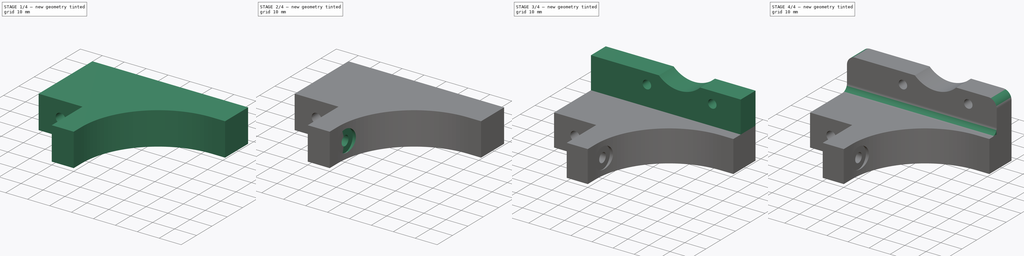
[diagram: build sequence overview — one tinted view per stage of 4, left to right]
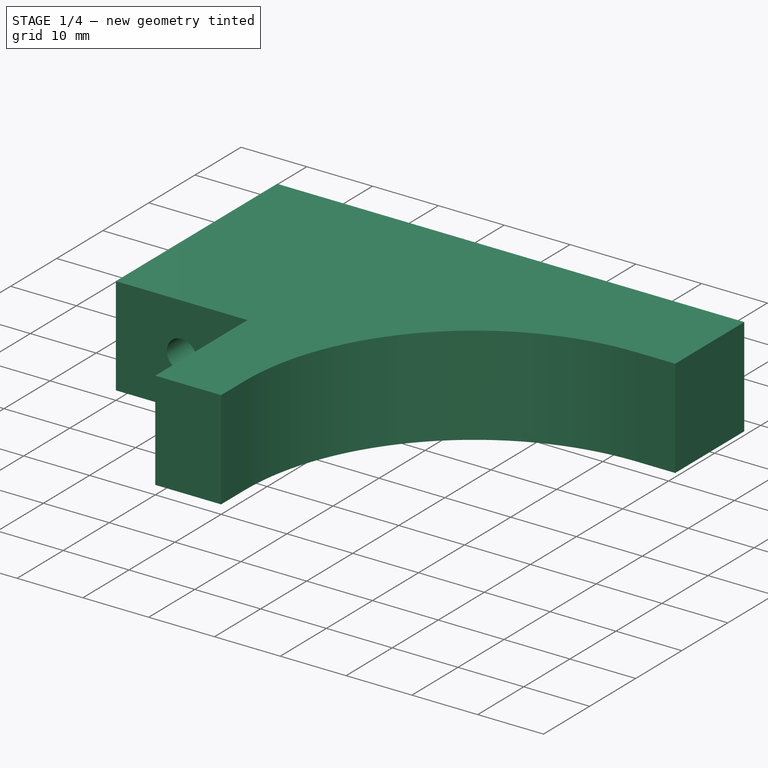
[diagram: stage 1 of 4 — iso view after this stage's code; geometry added in this stage tinted green]
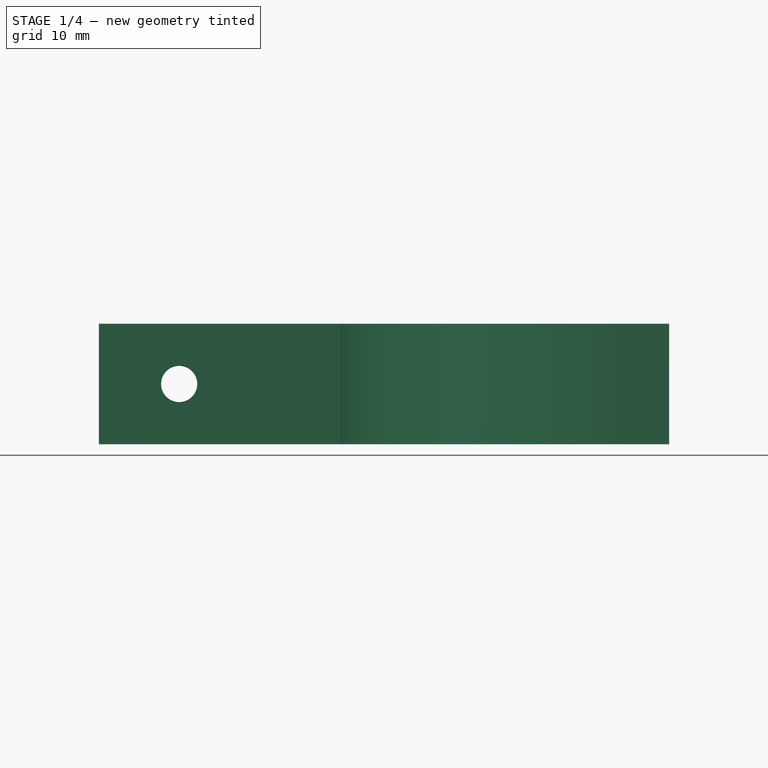
[diagram: stage 1 of 4 — front view after this stage's code; geometry added in this stage tinted green]
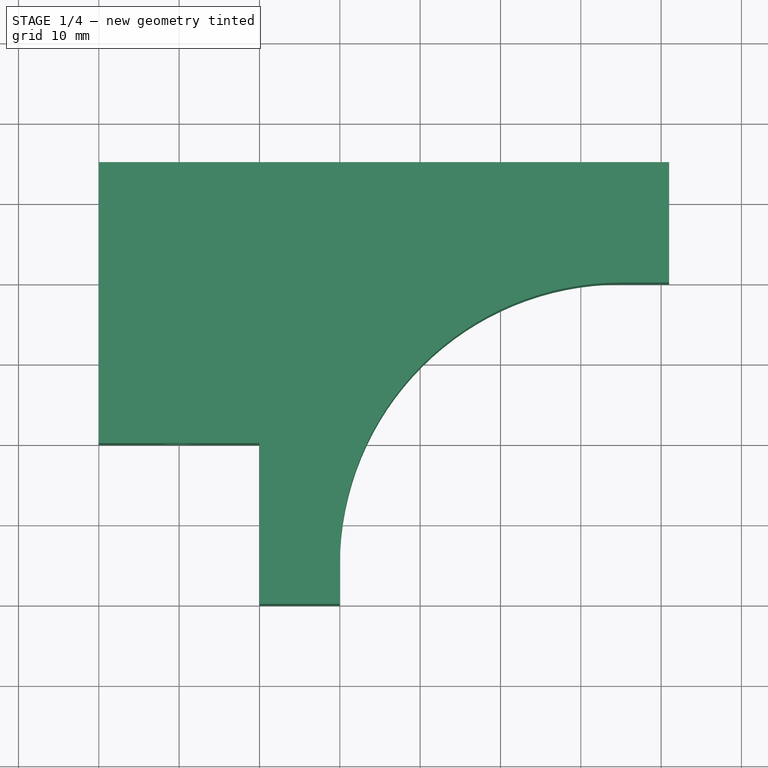
[diagram: stage 1 of 4 — top view after this stage's code; geometry added in this stage tinted green]
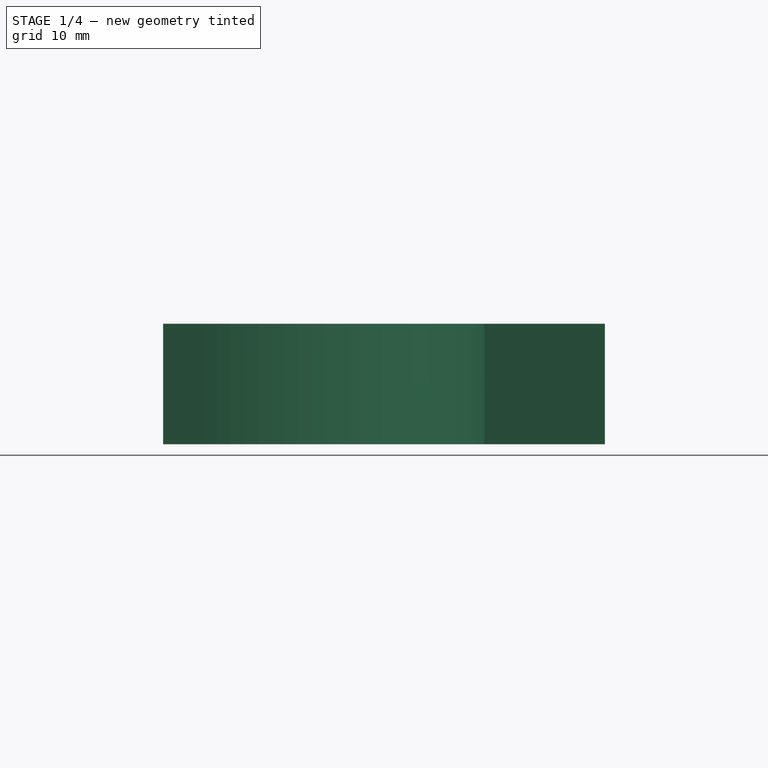
[diagram: stage 1 of 4 — right view after this stage's code; geometry added in this stage tinted green]
FCSTD DOCUMENT
Label: Z-motor-mount
objects: Sketcher::SketchObject×7, PartDesign::Pocket×5, PartDesign::Pad×2, PartDesign::Fillet×2
note: 23 computed .brp shape members not serialized (recipe doc carries the construction recipe); baked Part::Feature solids carry a one-line shape summary decoded from their .brp

FEATURE [Sketcher::SketchObject] Sketch
  sketch-geometry (9):
    g0: LineSegment StartX=51 StartY=15 StartZ=0 EndX=-20 EndY=15 EndZ=0
    g1: LineSegment StartX=-20 StartY=15 StartZ=0 EndX=-20 EndY=-20 EndZ=0
    g2: LineSegment StartX=0 StartY=-40 StartZ=0 EndX=0 EndY=-20 EndZ=0
    g3: LineSegment StartX=0 StartY=-20 StartZ=0 EndX=-20 EndY=-20 EndZ=0
    g4: LineSegment StartX=44.9999 StartY=0 StartZ=0 EndX=51 EndY=0 EndZ=0
    g5: LineSegment StartX=0 StartY=-40 StartZ=0 EndX=10 EndY=-40 EndZ=0
    g6: LineSegment StartX=51 StartY=0 StartZ=0 EndX=51 EndY=15 EndZ=0
    g7: ArcOfCircle CenterX=45 CenterY=-35 CenterZ=0 NormalX=0 NormalY=0 NormalZ=1 Radius=35 StartAngle=1.5708 EndAngle=3.14159
    g8: LineSegment StartX=10 StartY=-40 StartZ=0 EndX=10 EndY=-35 EndZ=0
  constraints (28):
    c: Coincident(g0,g1)
    c: Horizontal(g0)
    c: Vertical(g1)
    c: Distance(g0) = 71
    c: Horizontal(g3)
    c: Vertical(g2)
    c: DistanceX(g2,g1) = -20
    c: Horizontal(g4)
    c: Horizontal(g5)
    c: Coincident(g6,g0)
    c: Vertical(g6)
    c: DistanceX(g5) = 10
    c: Coincident(g5,g2)
    c: Coincident(g4,g6)
    c: Distance(g6) = 15
    c: Coincident(g3,g2)
    c: DistanceY(g-1,g5) = -40
    c: Distance(g2) = 20
    c: PointOnObject(g4,g-1)
    c: Coincident(g3,g1)
    c: Coincident(g7,g4)
    c: Tangent(g7,g4)
    c: Coincident(g8,g5)
    c: Vertical(g8)
    c: Coincident(g8,g7)
    c: Tangent(g8,g7)
    c: Radius(g7) = 35
    c: PointOnObject(g2,g-2)
FEATURE [PartDesign::Pad] Pad
  Length = 15
  Length2 = 100
  Sketch = -> Sketch
  Type = 0
FEATURE [Sketcher::SketchObject] Sketch001
  Placement = pos=(0,-20,0) rot=(1,0,0;1.5708rad)
  Support = -> Pad [Face5]
  sketch-geometry (1):
    g0: Circle CenterX=-10 CenterY=7.5 CenterZ=0 NormalX=0 NormalY=0 NormalZ=1 Radius=2.25
  constraints (3):
    c: DistanceX(g-1,g0) = -10
    c: DistanceY(g-1,g0) = 7.5
    c: Radius(g0) = 2.25
FEATURE [PartDesign::Pocket] Pocket
  Length = 5
  Sketch = -> Sketch001
  Type = 1
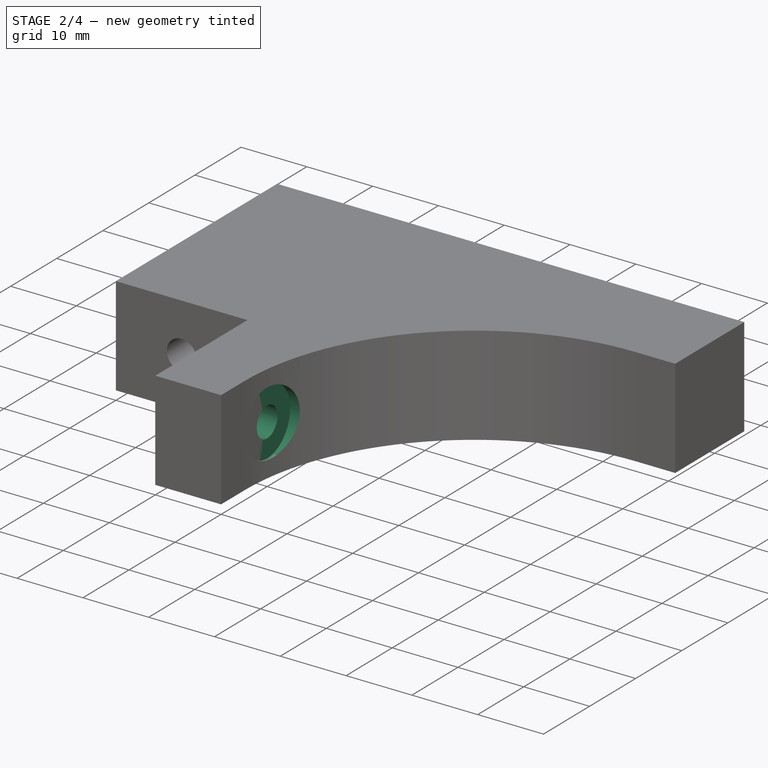
[diagram: stage 2 of 4 — iso view after this stage's code; geometry added in this stage tinted green]
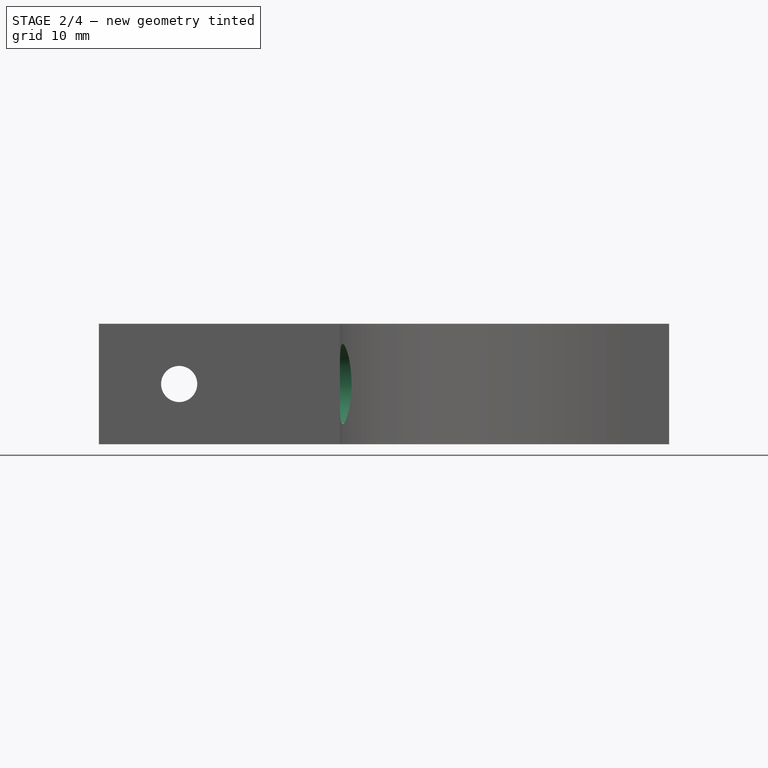
[diagram: stage 2 of 4 — front view after this stage's code; geometry added in this stage tinted green]
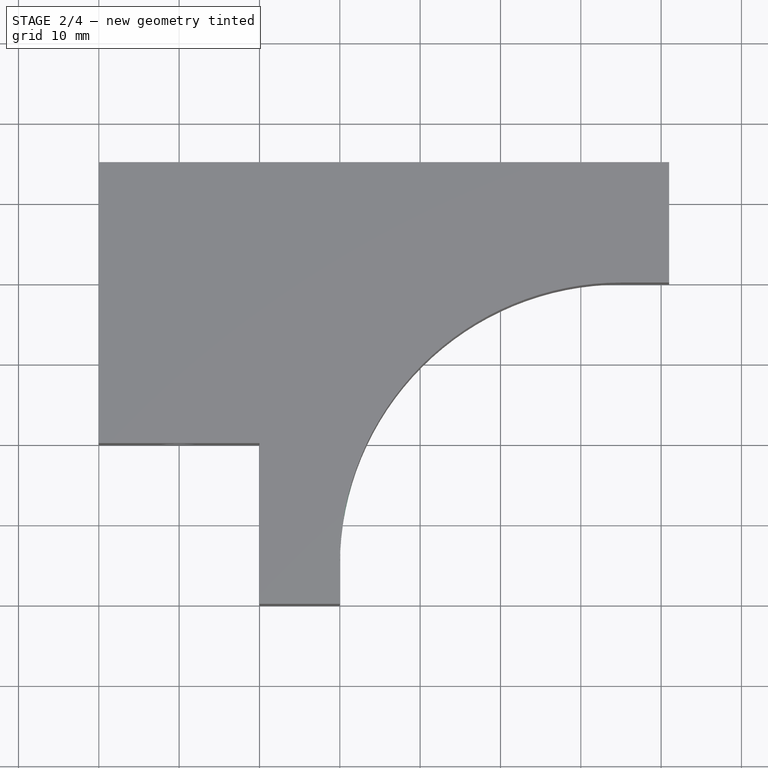
[diagram: stage 2 of 4 — top view after this stage's code; geometry added in this stage tinted green]
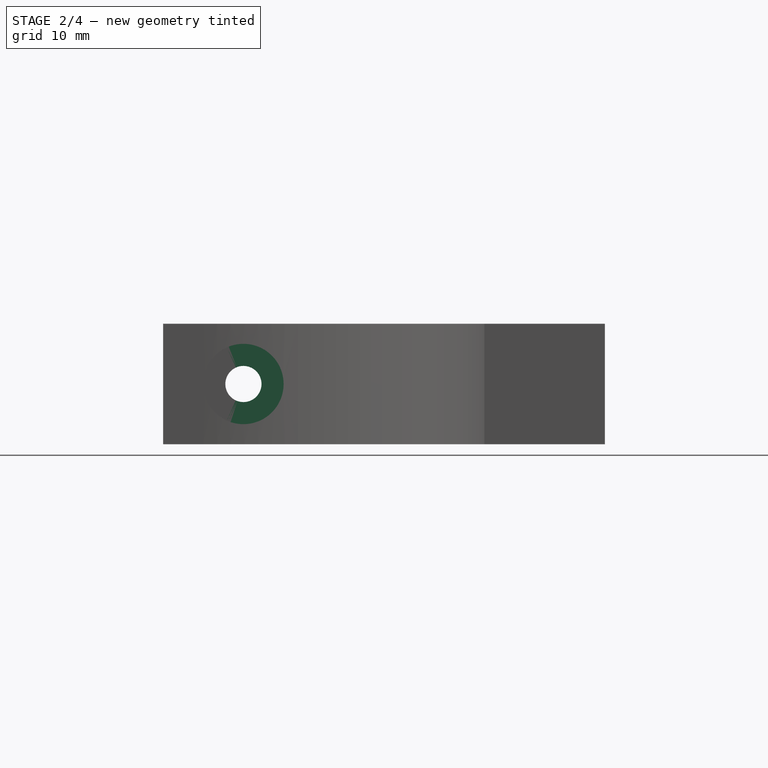
[diagram: stage 2 of 4 — right view after this stage's code; geometry added in this stage tinted green]
FEATURE [Sketcher::SketchObject] Sketch002
  Placement = pos=(0,0,0) rot=(0.57735,-0.57735,-0.57735;2.0944rad)
  Support = -> Pocket [Face10]
  sketch-geometry (1):
    g0: Circle CenterX=30 CenterY=7.5 CenterZ=0 NormalX=0 NormalY=0 NormalZ=1 Radius=2.25
  constraints (3):
    c: Radius(g0) = 2.25
    c: DistanceY(g-1,g0) = 7.5
    c: DistanceX(g-1,g0) = 30
FEATURE [PartDesign::Pocket] Pocket001
  Length = 5
  Sketch = -> Sketch002
  Type = 1
FEATURE [Sketcher::SketchObject] Sketch003
  Placement = pos=(51,0,0) rot=(0.57735,0.57735,0.57735;2.0944rad)
  Support = -> Pocket001 [Face3]
  sketch-geometry (1):
    g0: Circle CenterX=-30 CenterY=7.5 CenterZ=0 NormalX=0 NormalY=0 NormalZ=1 Radius=5
  constraints (3):
    c: DistanceX(g0) = -30
    c: DistanceY(g0) = 7.5
    c: Radius(g0) = 5
FEATURE [PartDesign::Pocket] Pocket002
  Length = 41
  Sketch = -> Sketch003
  Type = 0
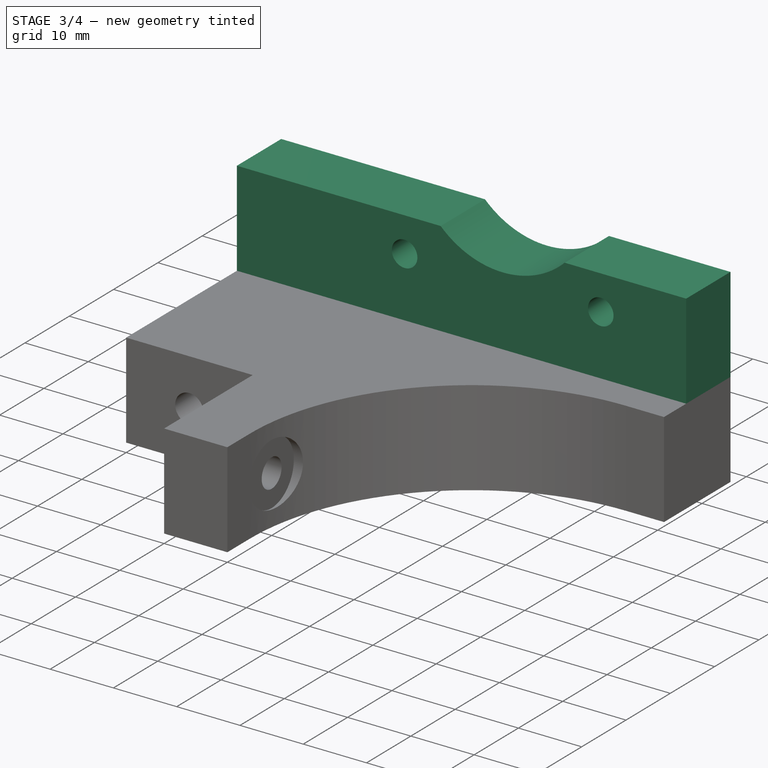
[diagram: stage 3 of 4 — iso view after this stage's code; geometry added in this stage tinted green]
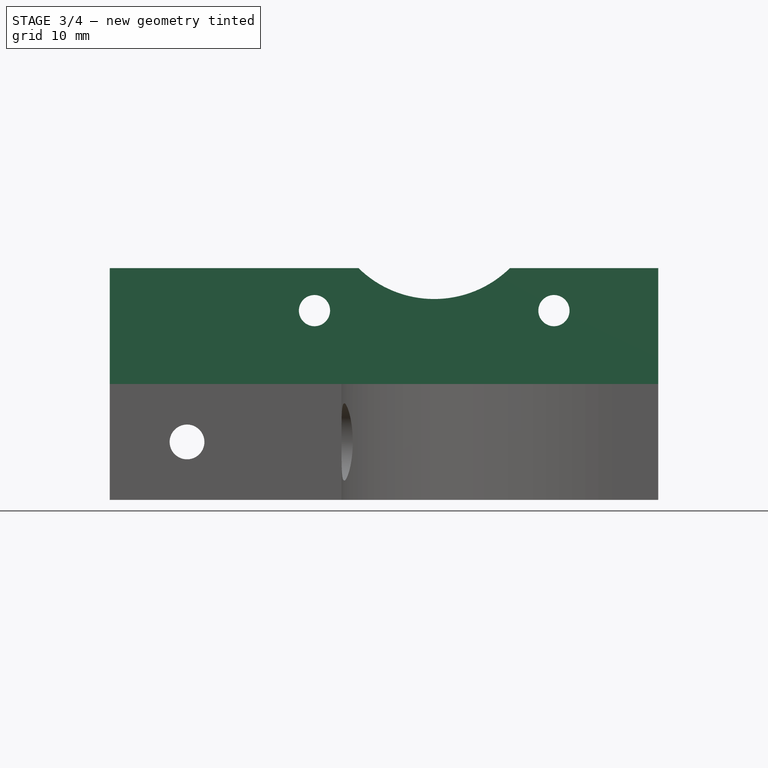
[diagram: stage 3 of 4 — front view after this stage's code; geometry added in this stage tinted green]
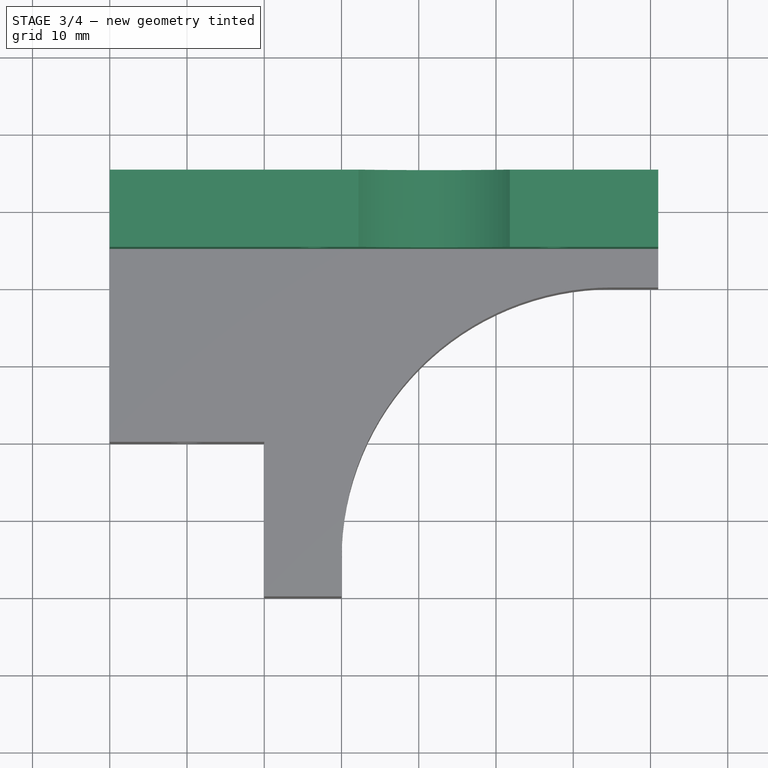
[diagram: stage 3 of 4 — top view after this stage's code; geometry added in this stage tinted green]
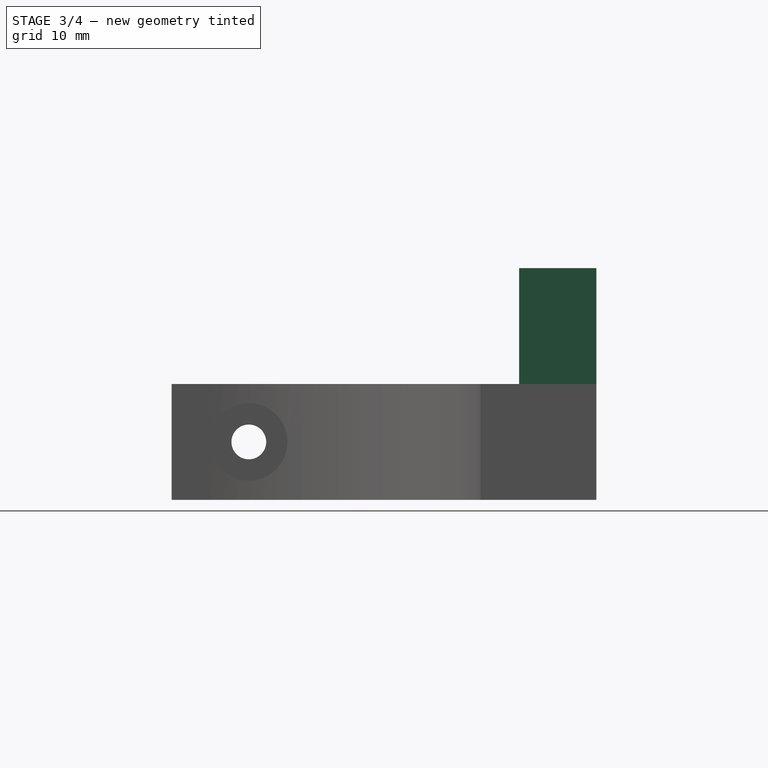
[diagram: stage 3 of 4 — right view after this stage's code; geometry added in this stage tinted green]
FEATURE [Sketcher::SketchObject] Sketch004
  ExternalGeometry = -> [Pocket002]
  Placement = pos=(0,0,15) rot=(0,0,1;0rad)
  Support = -> Pocket002 [Face5]
  sketch-geometry (4):
    g0: LineSegment StartX=-20 StartY=15 StartZ=0 EndX=51 EndY=15 EndZ=0
    g1: LineSegment StartX=51 StartY=15 StartZ=0 EndX=51 EndY=5 EndZ=0
    g2: LineSegment StartX=51 StartY=5 StartZ=0 EndX=-20 EndY=5 EndZ=0
    g3: LineSegment StartX=-20 StartY=5 StartZ=0 EndX=-20 EndY=15 EndZ=0
  constraints (11):
    c: Coincident()
    c: Coincident(g-3,g0)
    c: Coincident(g3,g0)
    c: Coincident(g1,g-3)
    c: Coincident(g0,g1)
    c: Coincident(g2,g3)
    c: Vertical(g3)
    c: Vertical(g1)
    c: Coincident(g2,g1)
    c: Distance(g1) = 10
    c: Equal(g1,g3)
FEATURE [PartDesign::Pad] Pad001
  Length = 15
  Length2 = 100
  Sketch = -> Sketch004
  Type = 0
FEATURE [Sketcher::SketchObject] Sketch005
  Placement = pos=(0,15,0) rot=(0,0.707107,0.707107;3.14159rad)
  Support = -> Pad001 [Face18]
  sketch-geometry (3):
    g0: Circle CenterX=-37.5 CenterY=24.5 CenterZ=0 NormalX=0 NormalY=0 NormalZ=1 Radius=2.01991
    g1: Circle CenterX=-6.5 CenterY=24.5 CenterZ=0 NormalX=0 NormalY=0 NormalZ=1 Radius=2.01991
    g2: Circle CenterX=-22 CenterY=40 CenterZ=0 NormalX=0 NormalY=0 NormalZ=1 Radius=14
  constraints (9):
    c: Equal(g0,g1)
    c: Radius(g1) = 2.01991
    c: DistanceX(g0,g1) = 31
    c: DistanceY(g1,g0) = 0
    c: DistanceX(g2,g0) = -15.5
    c: DistanceY(g2,g1) = -15.5
    c: Radius(g2) = 14
    c: DistanceX(g2) = -22
    c: DistanceY(g2) = 40
FEATURE [PartDesign::Pocket] Pocket003
  Length = 5
  Sketch = -> Sketch005
  Type = 1
FEATURE [Sketcher::SketchObject] Sketch006
  Placement = pos=(0,15,0) rot=(0,0.707107,0.707107;3.14159rad)
  Support = -> Pocket003 [Face18]
  sketch-geometry (2):
    g0: Circle CenterX=-37.5 CenterY=24.5 CenterZ=0 NormalX=0 NormalY=0 NormalZ=1 Radius=4
    g1: Circle CenterX=-6.5 CenterY=24.5 CenterZ=0 NormalX=0 NormalY=0 NormalZ=1 Radius=4
  constraints (6):
    c: DistanceY(g0,g1) = 0
    c: Equal(g1,g0)
    c: Radius(g1) = 4
    c: DistanceX(g0,g1) = 31
    c: DistanceX(g1) = -6.5
    c: DistanceY(g1) = 24.5
FEATURE [PartDesign::Pocket] Pocket004
  Length = 5
  Sketch = -> Sketch006
  Type = 0
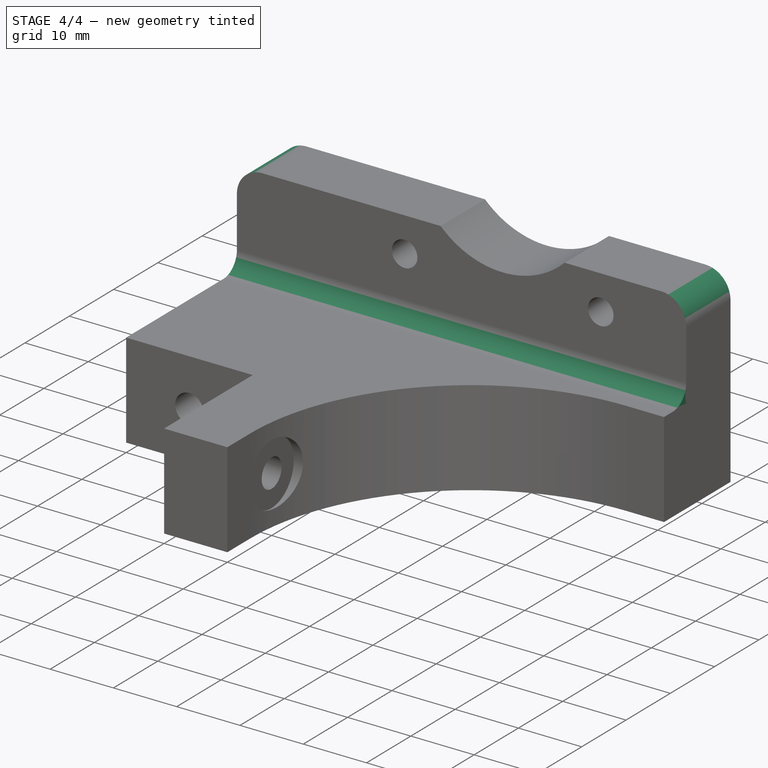
[diagram: stage 4 of 4 — iso view after this stage's code; geometry added in this stage tinted green]
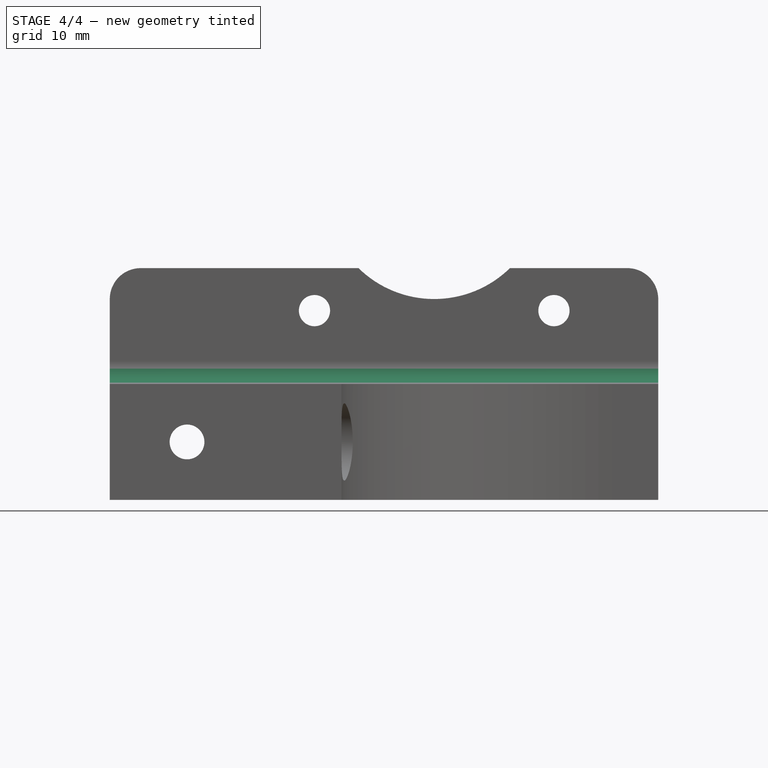
[diagram: stage 4 of 4 — front view after this stage's code; geometry added in this stage tinted green]
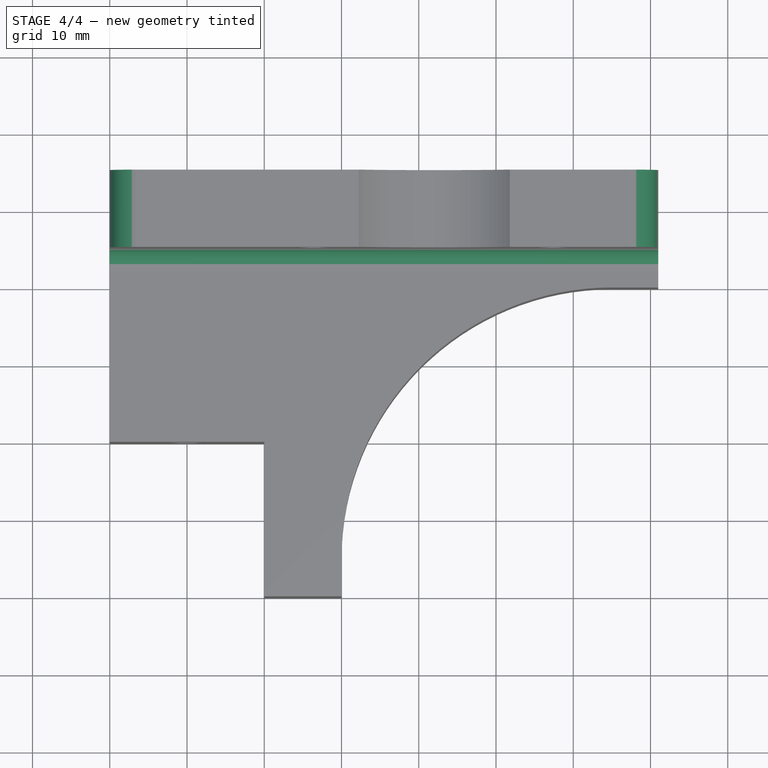
[diagram: stage 4 of 4 — top view after this stage's code; geometry added in this stage tinted green]
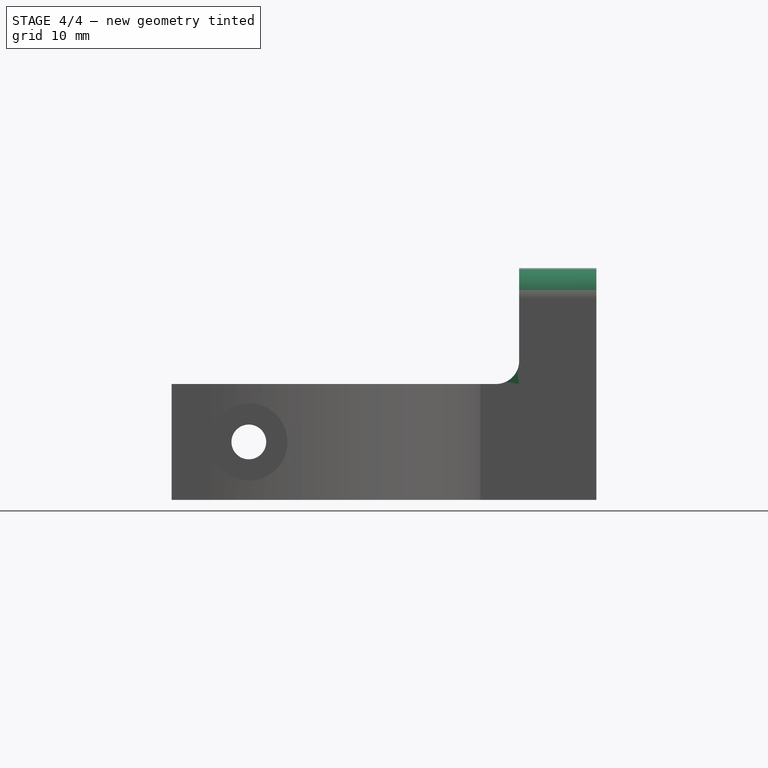
[diagram: stage 4 of 4 — right view after this stage's code; geometry added in this stage tinted green]
FEATURE [PartDesign::Fillet] Fillet
  Base = -> Pocket004 [Edge20]
  Radius = 3
FEATURE [PartDesign::Fillet] Fillet001  label="Z-motor-mount"
  Base = -> Fillet [Edge61,Edge17]
  Radius = 4
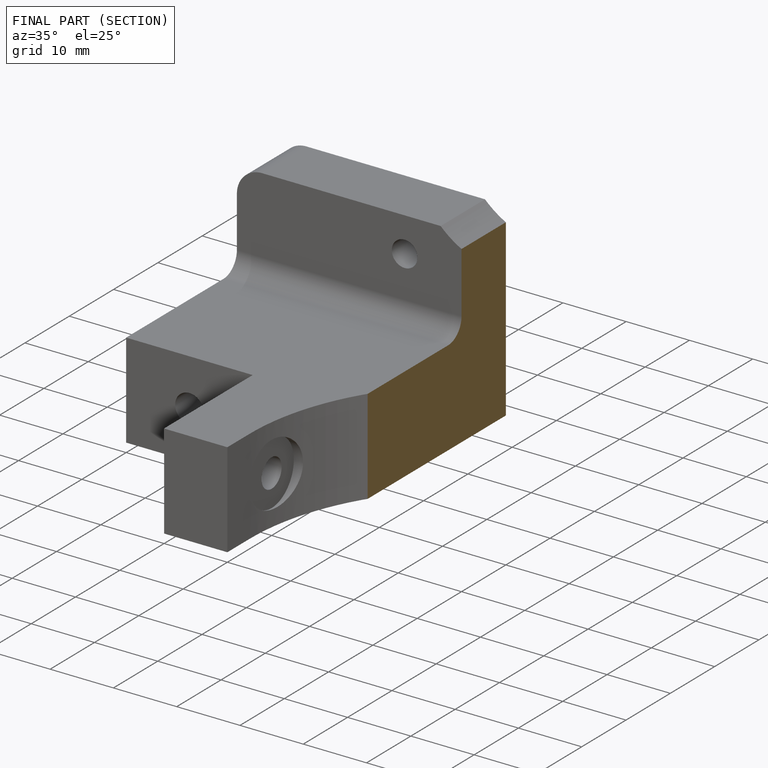
[diagram: finished part — half-section view (interior)]
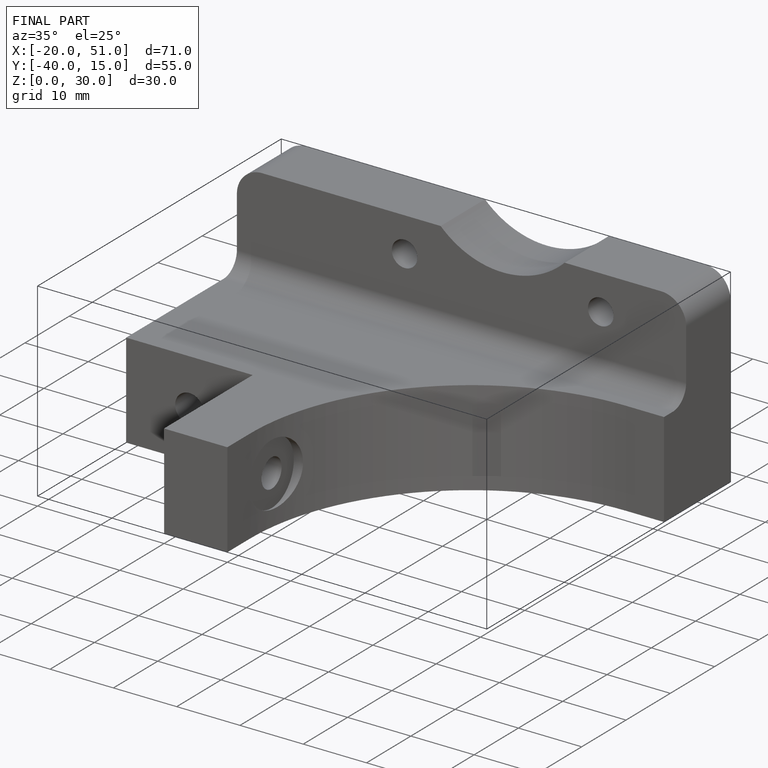
[diagram: finished part — iso view with bounding-box wireframe]
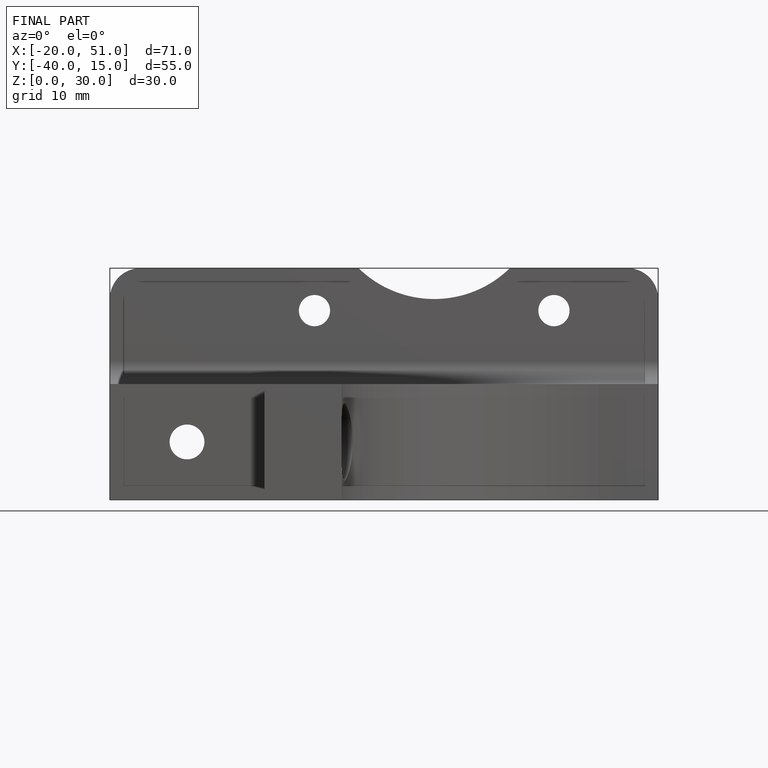
[diagram: finished part — front view with bounding-box wireframe]
